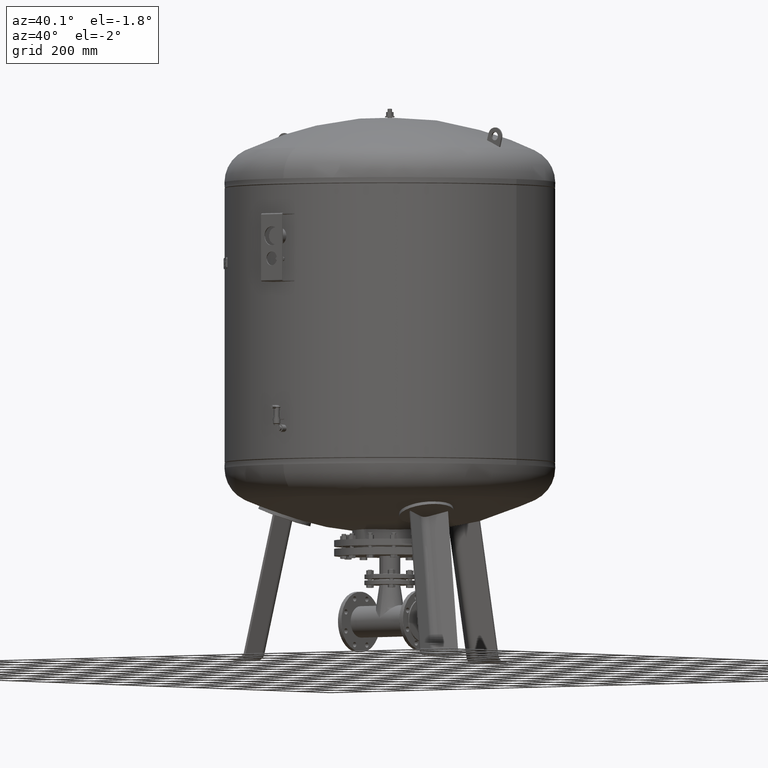
[diagram: clean part render]
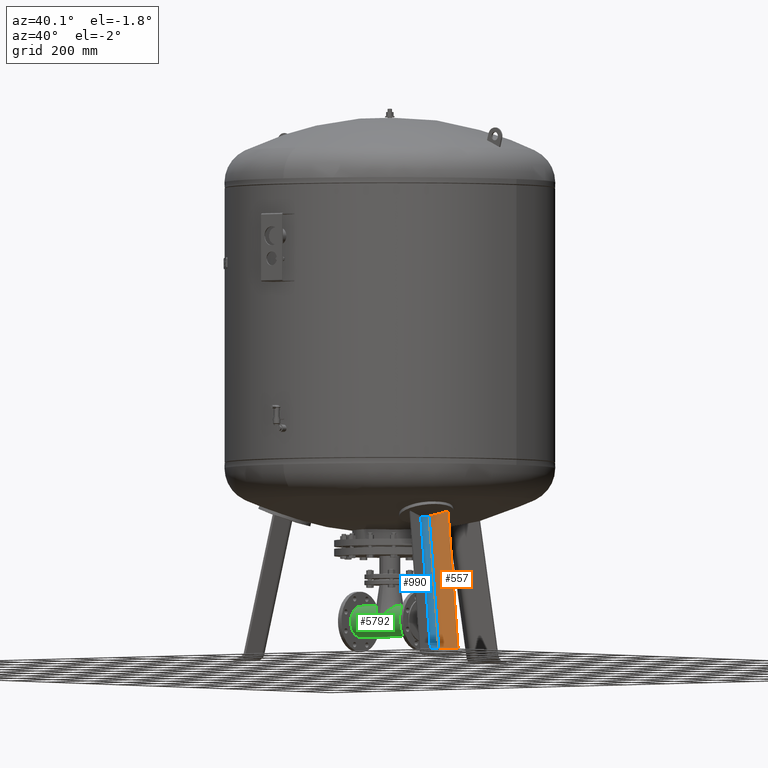
[diagram: same view with three faces highlighted in distinct colors, each labeled with its STEP entity id]
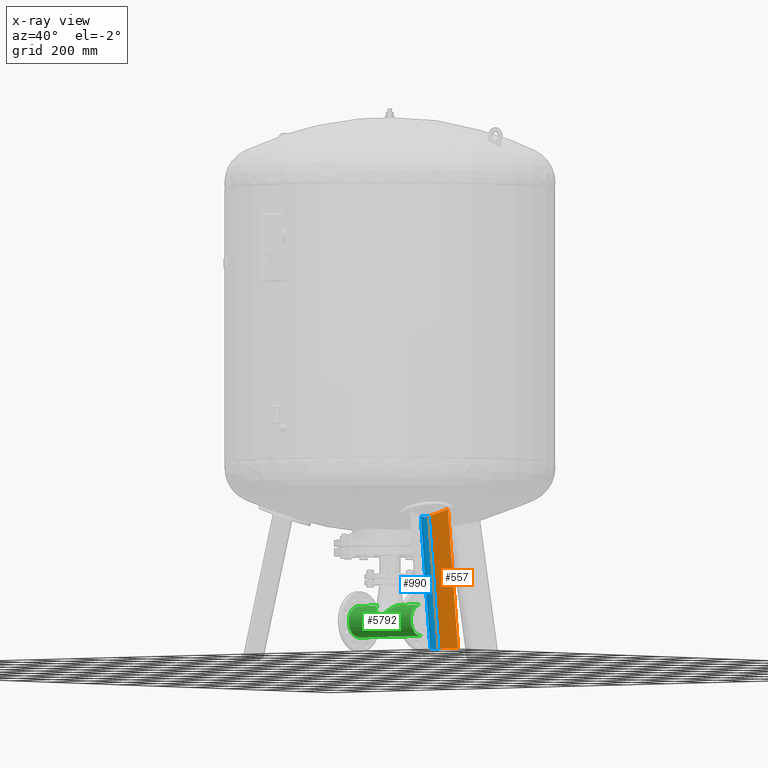
[diagram: x-ray of the same camera — body ghosted, the three highlighted faces saturated]
A machine part, auxiliary view with three faces highlighted in distinct colors.
The next image is the same camera in x-ray (body ghosted, the three faces saturated) — at least one of them is partly hidden behind the body in this view.
Their STEP definitions:

[orange] entity #557 — the highlighted planar face has unit normal (0.3243, -0.9325, 0.1588).
#242=CARTESIAN_POINT('',(331.471886874801380,-172.742614659007020,510.149969666713160));
#243=VERTEX_POINT('',#242);
#261=CARTESIAN_POINT('',(397.884990698560900,-145.613083205598510,533.843746499036000));
#262=VERTEX_POINT('',#261);
#263=CARTESIAN_POINT('',(397.884990698560900,-145.613083205598510,533.843746499036000));
#264=CARTESIAN_POINT('',(384.619296430347730,-151.152545046034250,528.403592446426270));
#265=CARTESIAN_POINT('',(371.293373231930790,-156.647038447854700,523.350498082422290));
#266=CARTESIAN_POINT('',(351.152787533789480,-164.839591880331170,516.369477981931600));
#267=CARTESIAN_POINT('',(344.335298495004620,-167.593311024787170,514.120476420435810));
#268=CARTESIAN_POINT('',(335.506731719871940,-171.131433109522900,511.371950061965830));
#269=CARTESIAN_POINT('',(333.488976274067230,-171.938159054883100,510.754973838816850));
#270=CARTESIAN_POINT('',(331.471886874801380,-172.742614659007020,510.149969666713160));
#271=B_SPLINE_CURVE_WITH_KNOTS('',3,(#263,#264,#265,#266,#267,#268,#269,#270),.UNSPECIFIED.,.F.,.U.,(4,2,2,4),(536.144034177567730,540.433260676197730,542.629325785795340,543.280185670864850),.UNSPECIFIED.);
#272=EDGE_CURVE('',#262,#243,#271,.T.);
#497=CARTESIAN_POINT('',(491.178961512120280,-199.476382368576250,27.029948423057281));
#498=VERTEX_POINT('',#497);
#499=CARTESIAN_POINT('',(491.178961512120280,-199.476382368576250,27.029948423057281));
#500=DIRECTION('',(-0.180056805991956,0.103955845408880,0.978147600733805));
#501=VECTOR('',#500,518.136319810800960);
#502=LINE('',#499,#501);
#503=EDGE_CURVE('',#498,#262,#502,.T.);
#534=CARTESIAN_POINT('',(503.798934266855670,-206.762527035688460,-41.527282742766886));
#535=DIRECTION('',(0.324282864533176,-0.932535537409927,0.158802063077709));
#536=DIRECTION('',(-0.180056805991956,0.103955845408880,0.978147600733806));
#537=AXIS2_PLACEMENT_3D('',#534,#535,#536);
#538=PLANE('',#537);
#539=CARTESIAN_POINT('',(420.404321888330290,-224.087779953756920,27.029948423057284));
#540=VERTEX_POINT('',#539);
#541=CARTESIAN_POINT('',(420.404321888330290,-224.087779953756920,27.029948423057284));
#542=DIRECTION('',(-0.180056805991956,0.103955845408880,0.978147600733806));
#543=VECTOR('',#542,493.913209909444730);
#544=LINE('',#541,#543);
#545=EDGE_CURVE('',#540,#243,#544,.T.);
#546=ORIENTED_EDGE('',*,*,#545,.F.);
#547=CARTESIAN_POINT('',(491.178961512120280,-199.476382368576250,27.029948423057281));
#548=DIRECTION('',(-0.944521094592692,-0.328450760190052,4.741265E-017));
#549=VECTOR('',#548,74.931772333057637);
#550=LINE('',#547,#549);
#551=EDGE_CURVE('',#498,#540,#550,.T.);
#552=ORIENTED_EDGE('',*,*,#551,.F.);
#553=ORIENTED_EDGE('',*,*,#503,.T.);
#554=ORIENTED_EDGE('',*,*,#272,.T.);
#555=EDGE_LOOP('',(#546,#552,#553,#554));
#556=FACE_OUTER_BOUND('',#555,.T.);
#557=ADVANCED_FACE('',(#556),#538,.T.);

[blue] entity #990 — the highlighted cylindrical surface (edge-blend (fillet) strip) has radius 25 mm, axis along (-0.1801, 0.104, 0.9781).
#160=CARTESIAN_POINT('',(407.333876729502890,-235.174323379832490,25.802207729556002));
#161=VERTEX_POINT('',#160);
#171=CARTESIAN_POINT('',(404.267871061775740,-252.036932639186180,27.029948423057292));
#172=VERTEX_POINT('',#171);
#173=CARTESIAN_POINT('',(428.511393501659710,-247.401168389005080,30.999999999999996));
#174=DIRECTION('',(-0.180056805991956,0.103955845408880,0.978147600733805));
#175=DIRECTION('',(-0.847100670886274,0.489073800366903,-0.207911690817760));
#176=AXIS2_PLACEMENT_3D('',#173,#174,#175);
#177=CIRCLE('',#176,24.999999999999993);
#178=EDGE_CURVE('',#161,#172,#177,.T.);
#242=CARTESIAN_POINT('',(331.471886874801380,-172.742614659007020,510.149969666713160));
#243=VERTEX_POINT('',#242);
#244=CARTESIAN_POINT('',(315.335436048246720,-200.691767344436240,510.149969666713160));
#245=VERTEX_POINT('',#244);
#246=CARTESIAN_POINT('',(331.471886874801380,-172.742614659007020,510.149969666713160));
#247=CARTESIAN_POINT('',(329.673263664994980,-173.459941576377560,509.610492067767100));
#248=CARTESIAN_POINT('',(327.946068589879930,-174.395195922133670,509.142768173629350));
#249=CARTESIAN_POINT('',(324.073577770467860,-177.116725187999750,508.230481452949160));
#250=CARTESIAN_POINT('',(322.064386538210330,-179.069823386990210,507.875794926071140));
#251=CARTESIAN_POINT('',(318.485627760978560,-183.856329274516270,507.547821983487950));
#252=CARTESIAN_POINT('',(317.049482140917350,-186.718916006526910,507.635749648318040));
#253=CARTESIAN_POINT('',(315.276366332167020,-192.711486133456500,508.311742070800450));
#254=CARTESIAN_POINT('',(314.933463092324930,-195.772692941911290,508.880567433415820));
#255=CARTESIAN_POINT('',(315.176317909257820,-199.422139842665900,509.801786873107350));
#256=CARTESIAN_POINT('',(315.243775551891700,-200.060131379974110,509.972152802305740));
#257=CARTESIAN_POINT('',(315.335436048246720,-200.691767344436240,510.149969666713160));
#258=B_SPLINE_CURVE_WITH_KNOTS('',3,(#246,#247,#248,#249,#250,#251,#252,#253,#254,#255,#256,#257),.UNSPECIFIED.,.F.,.U.,(4,2,2,2,2,4),(6.178732562930628,6.782666790960307,7.624398032083759,8.577958119307457,9.509799036765610,9.709090216410045),.UNSPECIFIED.);
#259=EDGE_CURVE('',#243,#245,#258,.T.);
#368=CARTESIAN_POINT('',(315.335436048246720,-200.691767344436240,510.149969666713160));
#369=DIRECTION('',(0.180056805991956,-0.103955845408880,-0.978147600733806));
#370=VECTOR('',#369,493.913209909444730);
#371=LINE('',#368,#370);
#372=EDGE_CURVE('',#245,#172,#371,.T.);
#539=CARTESIAN_POINT('',(420.404321888330290,-224.087779953756920,27.029948423057284));
#540=VERTEX_POINT('',#539);
#541=CARTESIAN_POINT('',(420.404321888330290,-224.087779953756920,27.029948423057284));
#542=DIRECTION('',(-0.180056805991956,0.103955845408880,0.978147600733806));
#543=VECTOR('',#542,493.913209909444730);
#544=LINE('',#541,#543);
#545=EDGE_CURVE('',#540,#243,#544,.T.);
#813=CARTESIAN_POINT('',(428.511393501659710,-247.401168389005080,30.999999999999996));
#814=DIRECTION('',(-0.180056805991956,0.103955845408880,0.978147600733805));
#815=DIRECTION('',(-0.847100670886274,0.489073800366903,-0.207911690817760));
#816=AXIS2_PLACEMENT_3D('',#813,#814,#815);
#817=CIRCLE('',#816,24.999999999999993);
#818=EDGE_CURVE('',#540,#161,#817,.T.);
#978=CARTESIAN_POINT('',(441.787354329396180,-255.066047946649660,-41.120846304840903));
#979=DIRECTION('',(-0.180056805991956,0.103955845408880,0.978147600733806));
#980=DIRECTION('',(-0.847100670886274,0.489073800366903,-0.207911690817760));
#981=AXIS2_PLACEMENT_3D('',#978,#979,#980);
#982=CYLINDRICAL_SURFACE('',#981,25.0);
#983=ORIENTED_EDGE('',*,*,#372,.T.);
#984=ORIENTED_EDGE('',*,*,#178,.F.);
#985=ORIENTED_EDGE('',*,*,#818,.F.);
#986=ORIENTED_EDGE('',*,*,#545,.T.);
#987=ORIENTED_EDGE('',*,*,#259,.T.);
#988=EDGE_LOOP('',(#983,#984,#985,#986,#987));
#989=FACE_OUTER_BOUND('',#988,.T.);
#990=ADVANCED_FACE('',(#989),#982,.F.);

[green] entity #5792 — the highlighted cylindrical surface (edge-blend (fillet) strip) has radius 57.15 mm, axis along (1, -0, 0).
#5627=CARTESIAN_POINT('',(147.0,-1.049828E-014,197.150000000000010));
#5628=VERTEX_POINT('',#5627);
#5629=CARTESIAN_POINT('',(49.121056086290146,-1.049828E-014,197.149999999999980));
#5630=VERTEX_POINT('',#5629);
#5631=CARTESIAN_POINT('',(147.0,-1.049828E-014,197.150000000000010));
#5632=DIRECTION('',(-1.0,0.0,0.0));
#5633=VECTOR('',#5632,97.878943913709861);
#5634=LINE('',#5631,#5633);
#5635=EDGE_CURVE('',#5628,#5630,#5634,.T.);
#5637=CARTESIAN_POINT('',(147.0,1.749691E-014,82.850000000000051));
#5638=VERTEX_POINT('',#5637);
#5646=CARTESIAN_POINT('',(-147.000000000000030,1.749691E-014,82.850000000000023));
#5647=VERTEX_POINT('',#5646);
#5648=CARTESIAN_POINT('',(147.0,1.749691E-014,82.850000000000051));
#5649=DIRECTION('',(-1.0,0.0,0.0));
#5650=VECTOR('',#5649,294.0);
#5651=LINE('',#5648,#5650);
#5652=EDGE_CURVE('',#5638,#5647,#5651,.T.);
#5654=CARTESIAN_POINT('',(-147.000000000000030,-1.049828E-014,197.149999999999920));
#5655=VERTEX_POINT('',#5654);
#5663=CARTESIAN_POINT('',(-49.121056086290160,-1.049828E-014,197.149999999999980));
#5664=VERTEX_POINT('',#5663);
#5665=CARTESIAN_POINT('',(-49.121056086290160,-1.049828E-014,197.149999999999980));
#5666=DIRECTION('',(-1.0,0.0,0.0));
#5667=VECTOR('',#5666,97.878943913709861);
#5668=LINE('',#5665,#5667);
#5669=EDGE_CURVE('',#5664,#5655,#5668,.T.);
#5695=CARTESIAN_POINT('',(0.0,-56.501274208526922,148.586530895119520));
#5696=VERTEX_POINT('',#5695);
#5720=CARTESIAN_POINT('',(8.685118123973661,8.881784E-015,140.0));
#5721=DIRECTION('',(-0.703059135475485,1.306327E-016,-0.711131388721144));
#5722=DIRECTION('',(-0.711131388721144,1.102756E-016,0.703059135475485));
#5723=AXIS2_PLACEMENT_3D('',#5720,#5721,#5722);
#5724=ELLIPSE('',#5723,81.287614535225259,57.149999999999928);
#5725=EDGE_CURVE('',#5696,#5664,#5724,.T.);
#5736=CARTESIAN_POINT('',(-8.685118123973652,-1.631557E-030,140.0));
#5737=DIRECTION('',(0.703059135475485,1.306327E-016,-0.711131388721144));
#5738=DIRECTION('',(-0.711131388721144,2.022660E-016,-0.703059135475485));
#5739=AXIS2_PLACEMENT_3D('',#5736,#5737,#5738);
#5740=ELLIPSE('',#5739,81.287614535225231,57.149999999999942);
#5741=EDGE_CURVE('',#5630,#5696,#5740,.T.);
#5761=CARTESIAN_POINT('',(-147.000000000000030,3.306970E-030,139.999999999999970));
#5762=DIRECTION('',(1.0,0.0,0.0));
#5763=DIRECTION('',(0.0,0.0,1.0));
#5764=AXIS2_PLACEMENT_3D('',#5761,#5762,#5763);
#5765=CIRCLE('',#5764,57.149999999999949);
#5766=EDGE_CURVE('',#5655,#5647,#5765,.T.);
#5772=CARTESIAN_POINT('',(-1.776357E-014,7.245570E-046,140.0));
#5773=DIRECTION('',(1.0,-2.249640E-032,1.224647E-016));
#5774=DIRECTION('',(0.0,0.0,1.0));
#5775=AXIS2_PLACEMENT_3D('',#5772,#5773,#5774);
#5776=CYLINDRICAL_SURFACE('',#5775,57.149999999999963);
#5777=ORIENTED_EDGE('',*,*,#5635,.T.);
#5778=ORIENTED_EDGE('',*,*,#5741,.T.);
#5779=ORIENTED_EDGE('',*,*,#5725,.T.);
#5780=ORIENTED_EDGE('',*,*,#5669,.T.);
#5781=ORIENTED_EDGE('',*,*,#5766,.T.);
#5782=ORIENTED_EDGE('',*,*,#5652,.F.);
#5783=CARTESIAN_POINT('',(147.0,-3.306970E-030,140.000000000000030));
#5784=DIRECTION('',(1.0,0.0,0.0));
#5785=DIRECTION('',(0.0,0.0,1.0));
#5786=AXIS2_PLACEMENT_3D('',#5783,#5784,#5785);
#5787=CIRCLE('',#5786,57.149999999999977);
#5788=EDGE_CURVE('',#5628,#5638,#5787,.T.);
#5789=ORIENTED_EDGE('',*,*,#5788,.F.);
#5790=EDGE_LOOP('',(#5777,#5778,#5779,#5780,#5781,#5782,#5789));
#5791=FACE_OUTER_BOUND('',#5790,.T.);
#5792=ADVANCED_FACE('',(#5791),#5776,.T.);